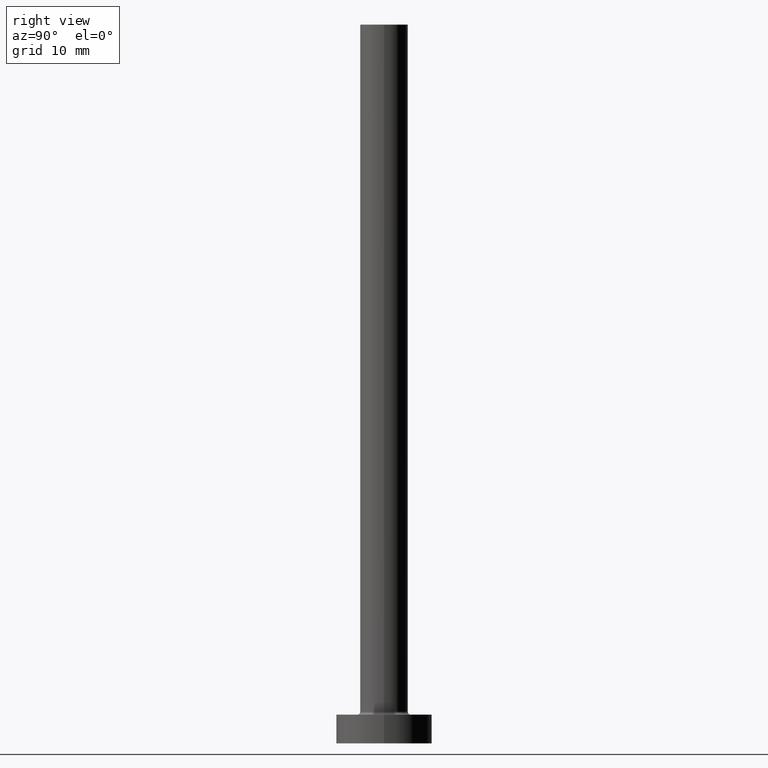
[diagram: clean part render]
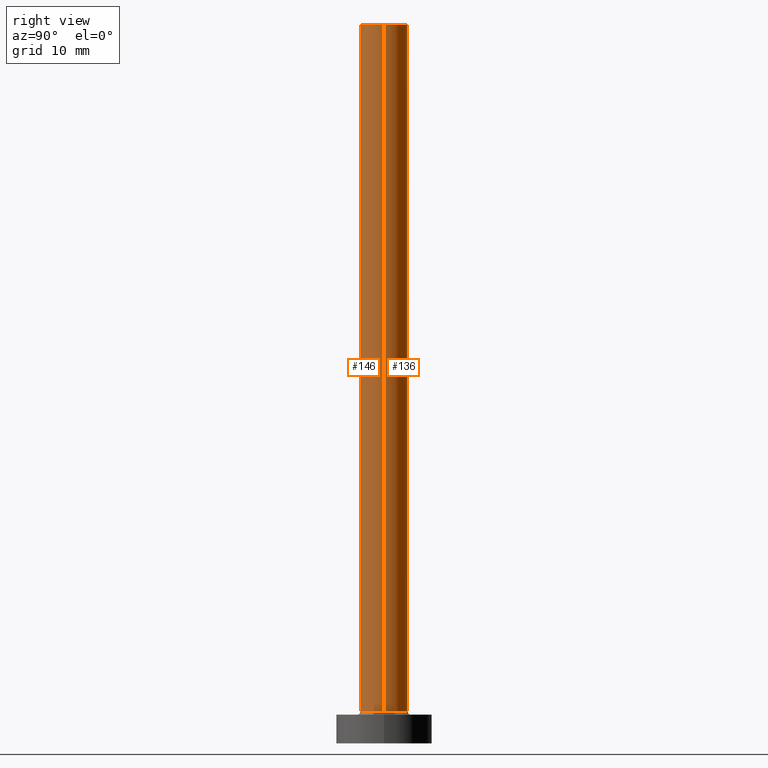
[diagram: same view with one multi-face feature highlighted, each face labeled with its STEP entity id]
A machine part, right view. The highlighted faces form ONE feature: a constant-radius fillet chain: 2 tangent blend faces with common blend radius 2.5 mm. The faces share edges in the B-rep.
Their STEP definitions:
[1] entity #146 (Cylinder):
#7 = DIRECTION ( 'NONE',  ( 0.000000000000000000, 0.000000000000000000, 1.000000000000000000 ) ) ;
#23 = CARTESIAN_POINT ( 'NONE',  ( 0.000000000000000000, 0.000000000000000000, 75.00000000000001421 ) ) ;
#28 = CARTESIAN_POINT ( 'NONE',  ( -2.500000000000000000, 0.000000000000000000, 75.00000000000001421 ) ) ;
#43 = EDGE_CURVE ( 'NONE', #350, #171, #104, .T. ) ;
#65 = DIRECTION ( 'NONE',  ( -0.000000000000000000, -0.000000000000000000, -1.000000000000000000 ) ) ;
#74 = CARTESIAN_POINT ( 'NONE',  ( -2.500000000000000000, 0.000000000000000000, 3.299999999999997158 ) ) ;
#85 = CARTESIAN_POINT ( 'NONE',  ( 0.000000000000000000, 0.000000000000000000, 3.299999999999997158 ) ) ;
#89 = CARTESIAN_POINT ( 'NONE',  ( 2.500000000000000000, 3.061616997868383141E-16, 75.00000000000001421 ) ) ;
#95 = EDGE_CURVE ( 'NONE', #337, #171, #298, .T. ) ;
#104 = CIRCLE ( 'NONE', #359, 2.500000000000000000 ) ;
#143 = EDGE_LOOP ( 'NONE', ( #364, #406, #243, #266 ) ) ;
#146 = ADVANCED_FACE ( 'NONE', ( #275 ), #376, .T. ) ;
#169 = DIRECTION ( 'NONE',  ( -1.000000000000000000, 0.000000000000000000, 0.000000000000000000 ) ) ;
#171 = VERTEX_POINT ( 'NONE', #452 ) ;
#172 = CIRCLE ( 'NONE', #392, 2.500000000000000000 ) ;
#175 = DIRECTION ( 'NONE',  ( -0.000000000000000000, -0.000000000000000000, -1.000000000000000000 ) ) ;
#180 = VERTEX_POINT ( 'NONE', #28 ) ;
#195 = EDGE_CURVE ( 'NONE', #180, #337, #172, .T. ) ;
#197 = DIRECTION ( 'NONE',  ( 0.000000000000000000, 0.000000000000000000, 1.000000000000000000 ) ) ;
#199 = CARTESIAN_POINT ( 'NONE',  ( 0.000000000000000000, 0.000000000000000000, 75.00000000000001421 ) ) ;
#213 = LINE ( 'NONE', #391, #299 ) ;
#226 = DIRECTION ( 'NONE',  ( 1.000000000000000000, 0.000000000000000000, 0.000000000000000000 ) ) ;
#228 = DIRECTION ( 'NONE',  ( -0.000000000000000000, -0.000000000000000000, -1.000000000000000000 ) ) ;
#240 = DIRECTION ( 'NONE',  ( 1.000000000000000000, 0.000000000000000000, 0.000000000000000000 ) ) ;
#243 = ORIENTED_EDGE ( 'NONE', *, *, #288, .T. ) ;
#266 = ORIENTED_EDGE ( 'NONE', *, *, #43, .T. ) ;
#275 = FACE_OUTER_BOUND ( 'NONE', #143, .T. ) ;
#288 = EDGE_CURVE ( 'NONE', #180, #350, #213, .T. ) ;
#298 = LINE ( 'NONE', #89, #383 ) ;
#299 = VECTOR ( 'NONE', #175, 1000.000000000000000 ) ;
#322 = CARTESIAN_POINT ( 'NONE',  ( 2.500000000000000000, 3.061616997868383141E-16, 75.00000000000001421 ) ) ;
#337 = VERTEX_POINT ( 'NONE', #322 ) ;
#350 = VERTEX_POINT ( 'NONE', #74 ) ;
#359 = AXIS2_PLACEMENT_3D ( 'NONE', #85, #7, #226 ) ;
#364 = ORIENTED_EDGE ( 'NONE', *, *, #95, .F. ) ;
#376 = CYLINDRICAL_SURFACE ( 'NONE', #420, 2.500000000000000000 ) ;
#383 = VECTOR ( 'NONE', #228, 1000.000000000000000 ) ;
#391 = CARTESIAN_POINT ( 'NONE',  ( -2.500000000000000000, 0.000000000000000000, 75.00000000000001421 ) ) ;
#392 = AXIS2_PLACEMENT_3D ( 'NONE', #199, #197, #240 ) ;
#406 = ORIENTED_EDGE ( 'NONE', *, *, #195, .F. ) ;
#420 = AXIS2_PLACEMENT_3D ( 'NONE', #23, #65, #169 ) ;
#452 = CARTESIAN_POINT ( 'NONE',  ( 2.500000000000000000, 3.061616997868383141E-16, 3.299999999999997158 ) ) ;
[2] entity #136 (Cylinder):
#1 = DIRECTION ( 'NONE',  ( 1.000000000000000000, 0.000000000000000000, 0.000000000000000000 ) ) ;
#8 = AXIS2_PLACEMENT_3D ( 'NONE', #140, #283, #71 ) ;
#26 = ORIENTED_EDGE ( 'NONE', *, *, #95, .T. ) ;
#28 = CARTESIAN_POINT ( 'NONE',  ( -2.500000000000000000, 0.000000000000000000, 75.00000000000001421 ) ) ;
#37 = DIRECTION ( 'NONE',  ( 0.000000000000000000, 0.000000000000000000, 1.000000000000000000 ) ) ;
#62 = FACE_OUTER_BOUND ( 'NONE', #377, .T. ) ;
#68 = CYLINDRICAL_SURFACE ( 'NONE', #439, 2.500000000000000000 ) ;
#71 = DIRECTION ( 'NONE',  ( 1.000000000000000000, 0.000000000000000000, 0.000000000000000000 ) ) ;
#74 = CARTESIAN_POINT ( 'NONE',  ( -2.500000000000000000, 0.000000000000000000, 3.299999999999997158 ) ) ;
#84 = AXIS2_PLACEMENT_3D ( 'NONE', #386, #37, #1 ) ;
#89 = CARTESIAN_POINT ( 'NONE',  ( 2.500000000000000000, 3.061616997868383141E-16, 75.00000000000001421 ) ) ;
#95 = EDGE_CURVE ( 'NONE', #337, #171, #298, .T. ) ;
#97 = DIRECTION ( 'NONE',  ( -1.000000000000000000, 0.000000000000000000, 0.000000000000000000 ) ) ;
#126 = CIRCLE ( 'NONE', #84, 2.500000000000000000 ) ;
#136 = ADVANCED_FACE ( 'NONE', ( #62 ), #68, .T. ) ;
#140 = CARTESIAN_POINT ( 'NONE',  ( 0.000000000000000000, 0.000000000000000000, 75.00000000000001421 ) ) ;
#171 = VERTEX_POINT ( 'NONE', #452 ) ;
#175 = DIRECTION ( 'NONE',  ( -0.000000000000000000, -0.000000000000000000, -1.000000000000000000 ) ) ;
#180 = VERTEX_POINT ( 'NONE', #28 ) ;
#213 = LINE ( 'NONE', #391, #299 ) ;
#228 = DIRECTION ( 'NONE',  ( -0.000000000000000000, -0.000000000000000000, -1.000000000000000000 ) ) ;
#268 = CIRCLE ( 'NONE', #8, 2.500000000000000000 ) ;
#269 = ORIENTED_EDGE ( 'NONE', *, *, #381, .T. ) ;
#283 = DIRECTION ( 'NONE',  ( 0.000000000000000000, 0.000000000000000000, 1.000000000000000000 ) ) ;
#288 = EDGE_CURVE ( 'NONE', #180, #350, #213, .T. ) ;
#298 = LINE ( 'NONE', #89, #383 ) ;
#299 = VECTOR ( 'NONE', #175, 1000.000000000000000 ) ;
#306 = ORIENTED_EDGE ( 'NONE', *, *, #288, .F. ) ;
#322 = CARTESIAN_POINT ( 'NONE',  ( 2.500000000000000000, 3.061616997868383141E-16, 75.00000000000001421 ) ) ;
#337 = VERTEX_POINT ( 'NONE', #322 ) ;
#346 = CARTESIAN_POINT ( 'NONE',  ( 0.000000000000000000, 0.000000000000000000, 75.00000000000001421 ) ) ;
#350 = VERTEX_POINT ( 'NONE', #74 ) ;
#373 = ORIENTED_EDGE ( 'NONE', *, *, #407, .F. ) ;
#377 = EDGE_LOOP ( 'NONE', ( #373, #26, #269, #306 ) ) ;
#381 = EDGE_CURVE ( 'NONE', #171, #350, #126, .T. ) ;
#382 = DIRECTION ( 'NONE',  ( -0.000000000000000000, -0.000000000000000000, -1.000000000000000000 ) ) ;
#383 = VECTOR ( 'NONE', #228, 1000.000000000000000 ) ;
#386 = CARTESIAN_POINT ( 'NONE',  ( 0.000000000000000000, 0.000000000000000000, 3.299999999999997158 ) ) ;
#391 = CARTESIAN_POINT ( 'NONE',  ( -2.500000000000000000, 0.000000000000000000, 75.00000000000001421 ) ) ;
#407 = EDGE_CURVE ( 'NONE', #337, #180, #268, .T. ) ;
#439 = AXIS2_PLACEMENT_3D ( 'NONE', #346, #382, #97 ) ;
#452 = CARTESIAN_POINT ( 'NONE',  ( 2.500000000000000000, 3.061616997868383141E-16, 3.299999999999997158 ) ) ;